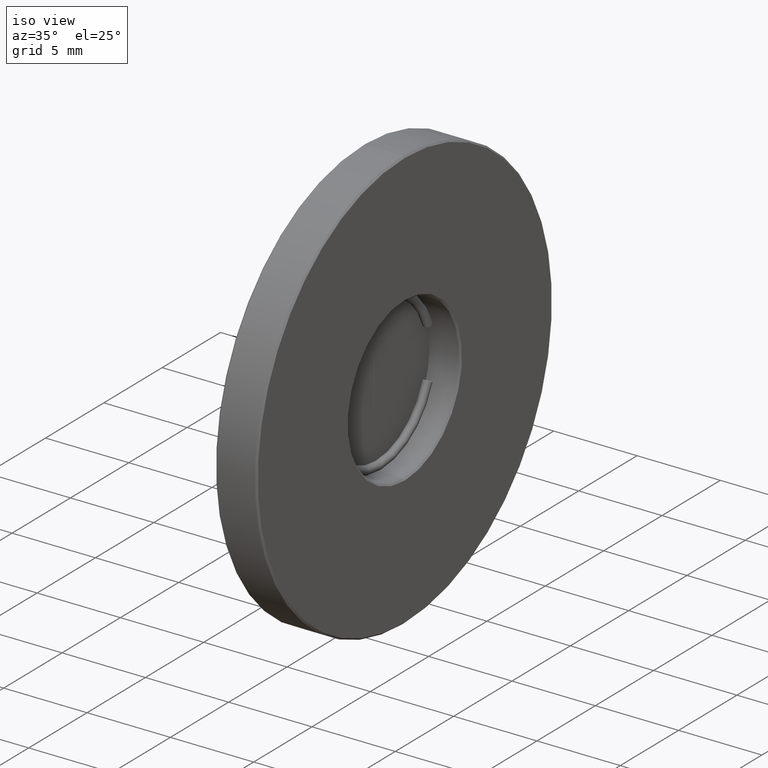
[diagram: clean part render]
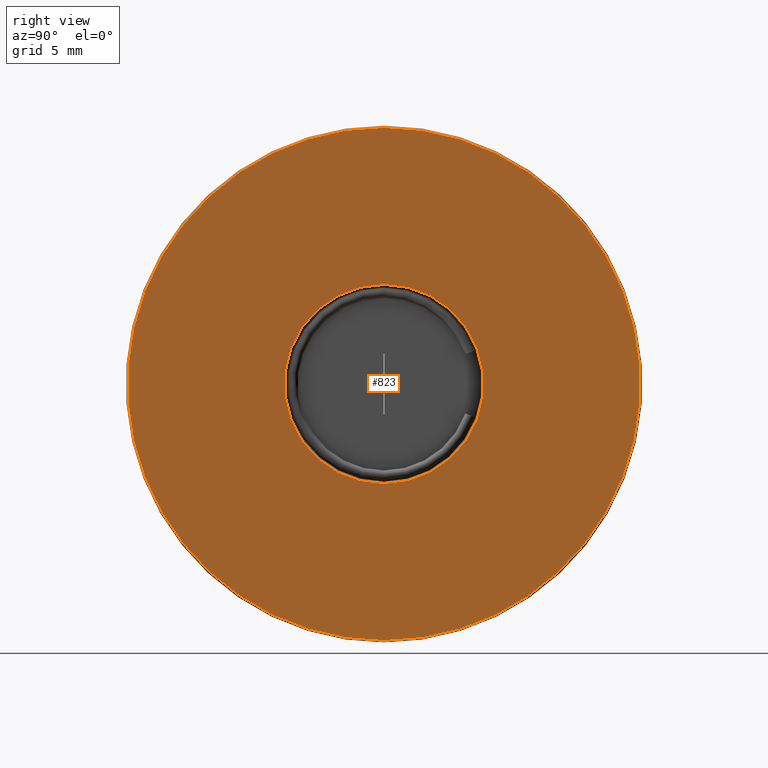
[diagram: tour spotlight — one face highlighted and labeled with its STEP entity id]
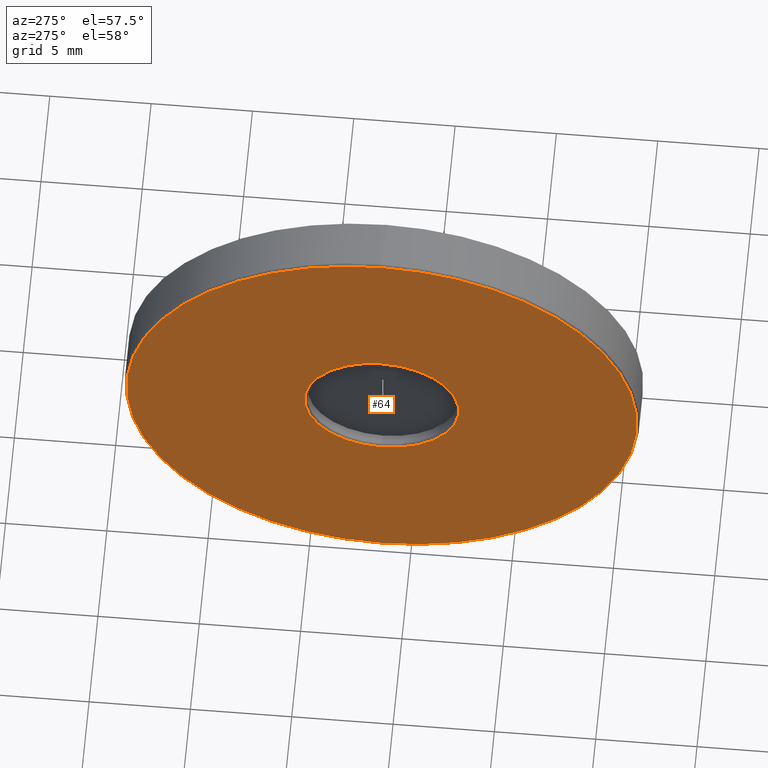
[diagram: tour spotlight — one face highlighted and labeled with its STEP entity id]
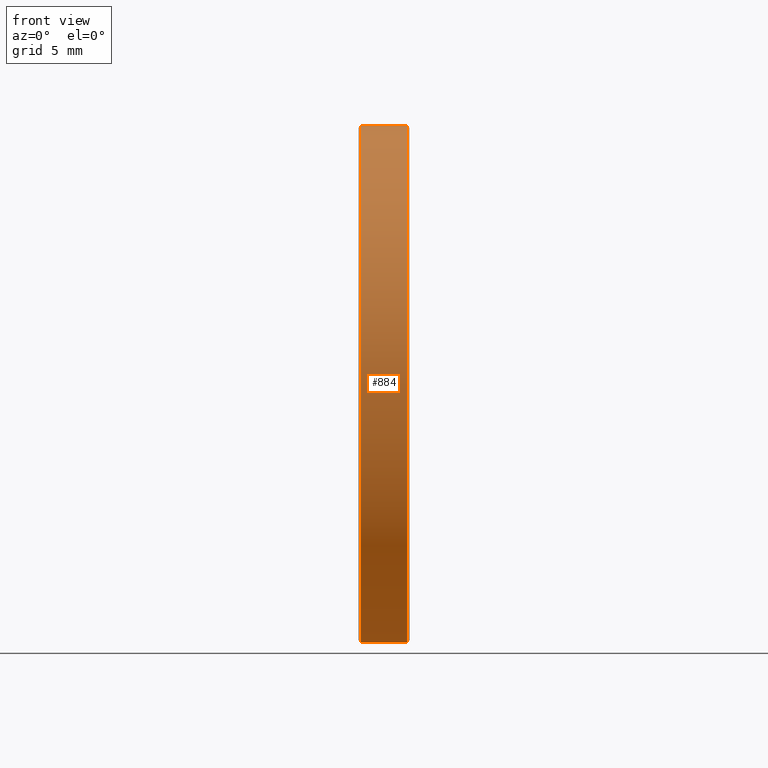
[diagram: tour spotlight — one face highlighted and labeled with its STEP entity id]
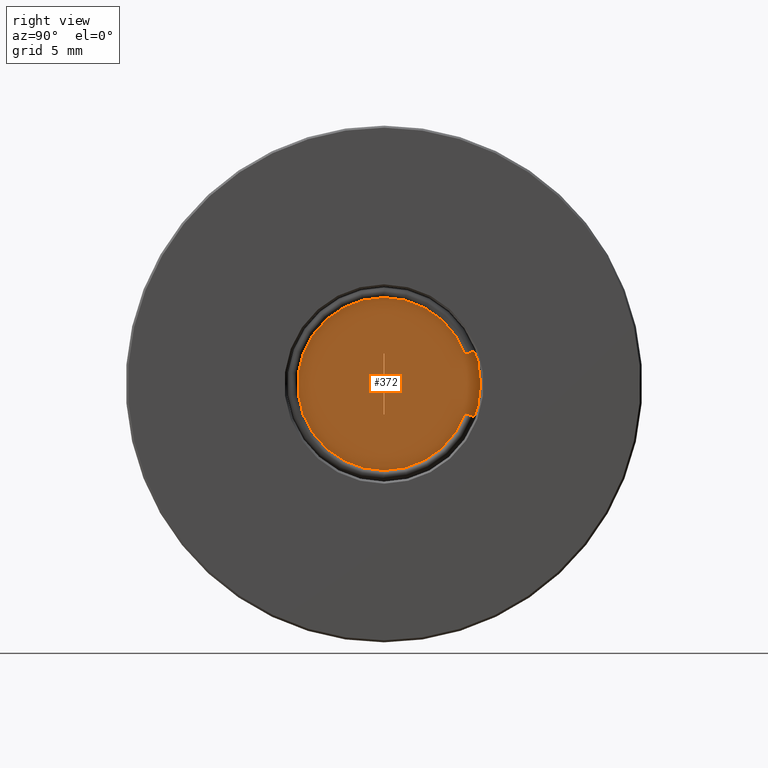
[diagram: tour spotlight — one face highlighted and labeled with its STEP entity id]
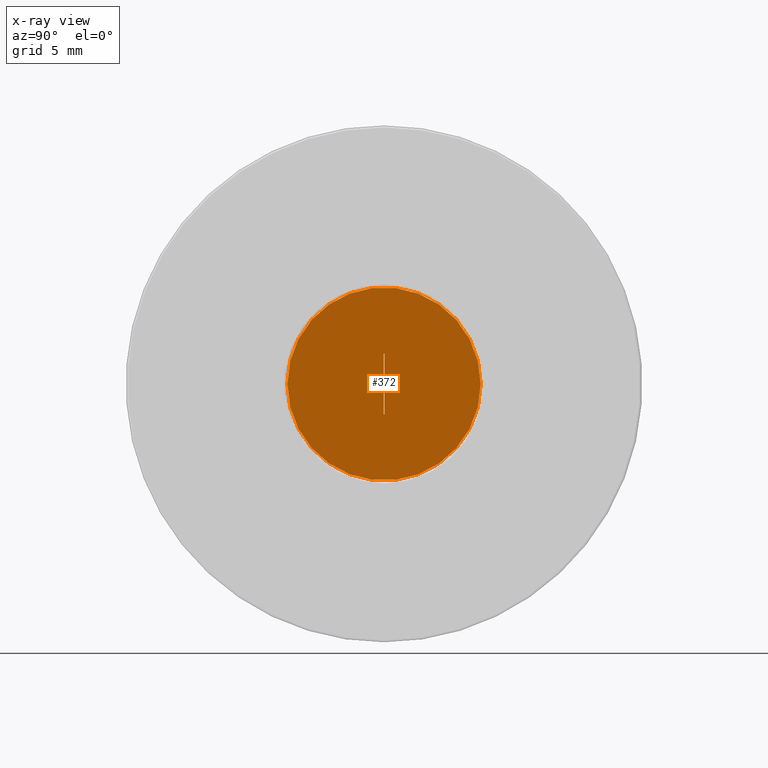
[diagram: x-ray of the same camera — body ghosted, this tour face saturated]
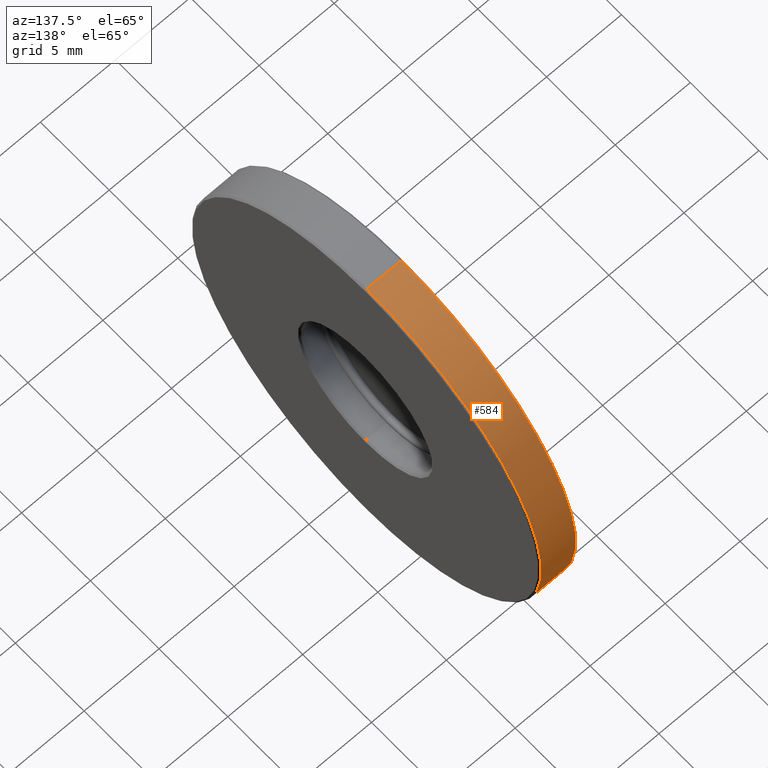
[diagram: tour spotlight — one face highlighted and labeled with its STEP entity id]
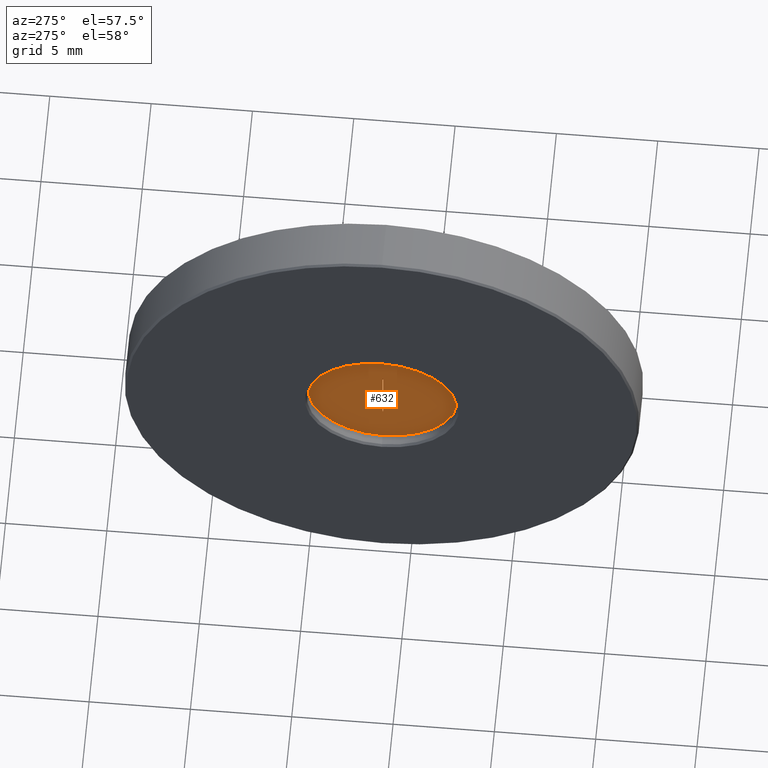
[diagram: tour spotlight — one face highlighted and labeled with its STEP entity id]
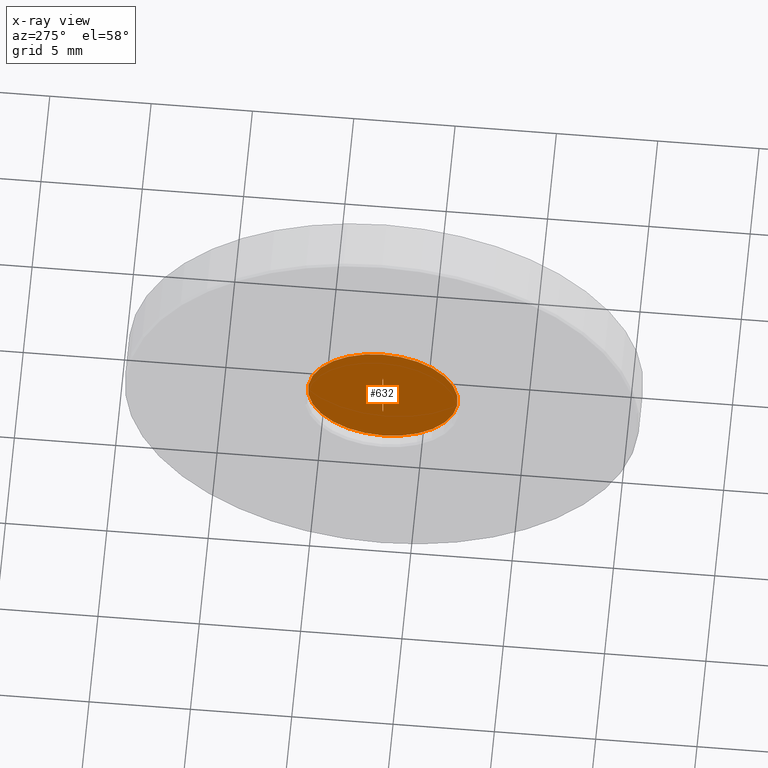
[diagram: x-ray of the same camera — body ghosted, this tour face saturated]
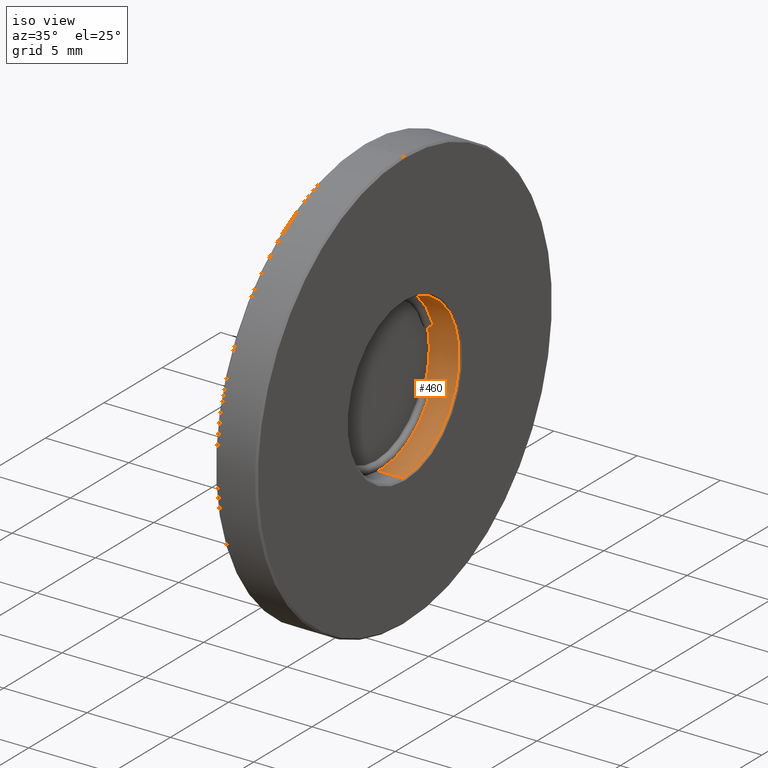
[diagram: tour spotlight — one face highlighted and labeled with its STEP entity id]
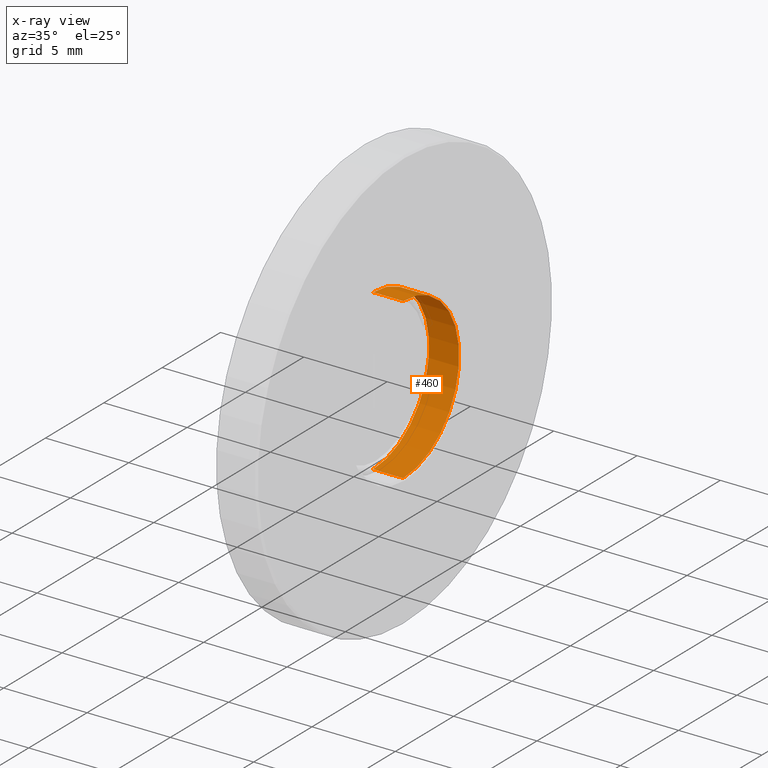
[diagram: x-ray of the same camera — body ghosted, this tour face saturated]
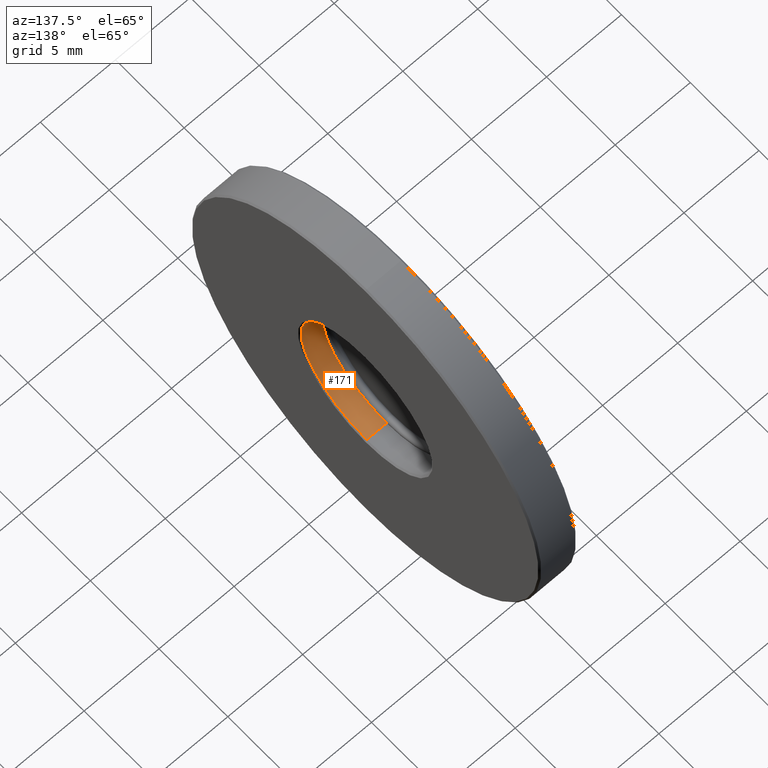
[diagram: tour spotlight — one face highlighted and labeled with its STEP entity id]
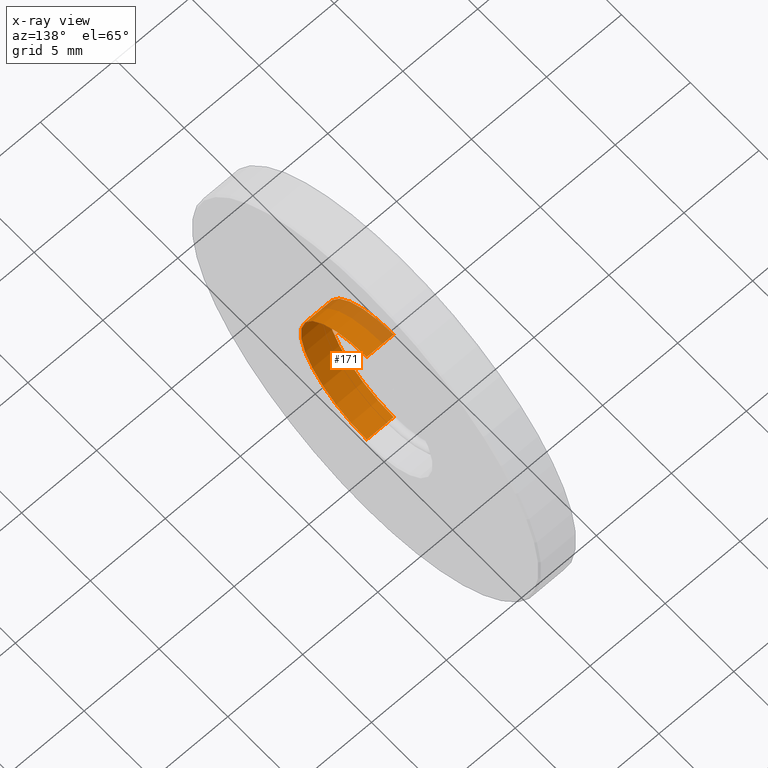
[diagram: x-ray of the same camera — body ghosted, this tour face saturated]
A machine part: a face-by-face anatomy tour. The part has 33 B-rep faces; the first image is the clean iso view, then the 8 largest visible faces are spotlighted one at a time (largest first), each with its STEP entity span.

Face 1 — right view, entity #823. In plain terms, the highlighted planar face has unit normal (1, 0, 0).
Definition (entity closure, byte-faithful):
#23 = CARTESIAN_POINT ( 'NONE',  ( -2.434863851252999645, 1.436758841085000071, 25.39999999999999858 ) ) ;
#24 = ORIENTED_EDGE ( 'NONE', *, *, #152, .T. ) ;
#43 = CARTESIAN_POINT ( 'NONE',  ( -2.434863851252999645, 1.436758841085000737, 30.30000000000000071 ) ) ;
#44 = ORIENTED_EDGE ( 'NONE', *, *, #729, .T. ) ;
#55 = EDGE_LOOP ( 'NONE', ( #44, #793 ) ) ;
#72 = PLANE ( 'NONE',  #134 ) ;
#74 = EDGE_CURVE ( 'NONE', #714, #585, #489, .T. ) ;
#78 = FACE_OUTER_BOUND ( 'NONE', #563, .T. ) ;
#95 = DIRECTION ( 'NONE',  ( 1.000000000000000000, 0.000000000000000000, 0.000000000000000000 ) ) ;
#112 = ORIENTED_EDGE ( 'NONE', *, *, #74, .T. ) ;
#124 = DIRECTION ( 'NONE',  ( -1.000000000000000000, 0.000000000000000000, 0.000000000000000000 ) ) ;
#134 = AXIS2_PLACEMENT_3D ( 'NONE', #446, #595, #307 ) ;
#152 = EDGE_CURVE ( 'NONE', #585, #714, #425, .T. ) ;
#182 = VERTEX_POINT ( 'NONE', #774 ) ;
#192 = AXIS2_PLACEMENT_3D ( 'NONE', #874, #95, #807 ) ;
#197 = CARTESIAN_POINT ( 'NONE',  ( -2.434863851252999645, 1.436758841085000071, 38.00000000000000000 ) ) ;
#280 = DIRECTION ( 'NONE',  ( 0.000000000000000000, 0.000000000000000000, -1.000000000000000000 ) ) ;
#298 = DIRECTION ( 'NONE',  ( 0.000000000000000000, 0.000000000000000000, -1.000000000000000000 ) ) ;
#307 = DIRECTION ( 'NONE',  ( 0.000000000000000000, 1.000000000000000000, 0.000000000000000000 ) ) ;
#314 = EDGE_CURVE ( 'NONE', #477, #182, #623, .T. ) ;
#419 = DIRECTION ( 'NONE',  ( 0.000000000000000000, 0.000000000000000000, -1.000000000000000000 ) ) ;
#425 = CIRCLE ( 'NONE', #192, 12.59999999999999964 ) ;
#431 = CARTESIAN_POINT ( 'NONE',  ( -2.434863851252999645, 1.436758841085000071, 25.39999999999999858 ) ) ;
#442 = AXIS2_PLACEMENT_3D ( 'NONE', #431, #768, #419 ) ;
#446 = CARTESIAN_POINT ( 'NONE',  ( -2.434863851252999645, 1.436758841085000071, 25.39999999999999858 ) ) ;
#458 = CIRCLE ( 'NONE', #624, 4.900000000000001243 ) ;
#470 = CARTESIAN_POINT ( 'NONE',  ( -2.434863851252999645, 1.436758841085001626, 12.79999999999999893 ) ) ;
#477 = VERTEX_POINT ( 'NONE', #43 ) ;
#489 = CIRCLE ( 'NONE', #569, 12.59999999999999964 ) ;
#513 = FACE_BOUND ( 'NONE', #55, .T. ) ;
#563 = EDGE_LOOP ( 'NONE', ( #112, #24 ) ) ;
#569 = AXIS2_PLACEMENT_3D ( 'NONE', #23, #881, #298 ) ;
#585 = VERTEX_POINT ( 'NONE', #470 ) ;
#595 = DIRECTION ( 'NONE',  ( 1.000000000000000000, 0.000000000000000000, 0.000000000000000000 ) ) ;
#623 = CIRCLE ( 'NONE', #442, 4.900000000000001243 ) ;
#624 = AXIS2_PLACEMENT_3D ( 'NONE', #843, #124, #280 ) ;
#714 = VERTEX_POINT ( 'NONE', #197 ) ;
#729 = EDGE_CURVE ( 'NONE', #182, #477, #458, .T. ) ;
#768 = DIRECTION ( 'NONE',  ( -1.000000000000000000, 0.000000000000000000, 0.000000000000000000 ) ) ;
#774 = CARTESIAN_POINT ( 'NONE',  ( -2.434863851252999645, 1.436758841085000071, 20.49999999999999645 ) ) ;
#793 = ORIENTED_EDGE ( 'NONE', *, *, #314, .T. ) ;
#807 = DIRECTION ( 'NONE',  ( 0.000000000000000000, 0.000000000000000000, -1.000000000000000000 ) ) ;
#823 = ADVANCED_FACE ( 'NONE', ( #513, #78 ), #72, .T. ) ;
#843 = CARTESIAN_POINT ( 'NONE',  ( -2.434863851252999645, 1.436758841085000071, 25.39999999999999858 ) ) ;
#874 = CARTESIAN_POINT ( 'NONE',  ( -2.434863851252999645, 1.436758841085000071, 25.39999999999999858 ) ) ;
#881 = DIRECTION ( 'NONE',  ( 1.000000000000000000, 0.000000000000000000, 0.000000000000000000 ) ) ;

Face 2 — auxiliary view, entity #64. In plain terms, the highlighted planar face has unit normal (1, 0, 0).
Definition (entity closure, byte-faithful):
#35 = AXIS2_PLACEMENT_3D ( 'NONE', #533, #600, #734 ) ;
#49 = AXIS2_PLACEMENT_3D ( 'NONE', #175, #98, #455 ) ;
#64 = ADVANCED_FACE ( 'NONE', ( #463, #885 ), #815, .F. ) ;
#98 = DIRECTION ( 'NONE',  ( -1.000000000000000000, 0.000000000000000000, 0.000000000000000000 ) ) ;
#147 = VERTEX_POINT ( 'NONE', #593 ) ;
#159 = ORIENTED_EDGE ( 'NONE', *, *, #688, .T. ) ;
#165 = CIRCLE ( 'NONE', #819, 3.800000000000001155 ) ;
#175 = CARTESIAN_POINT ( 'NONE',  ( -4.934863851252999645, 1.436758841085000071, 25.39999999999999858 ) ) ;
#189 = ORIENTED_EDGE ( 'NONE', *, *, #466, .T. ) ;
#231 = DIRECTION ( 'NONE',  ( 0.000000000000000000, 0.000000000000000000, -1.000000000000000000 ) ) ;
#270 = DIRECTION ( 'NONE',  ( 0.000000000000000000, 0.000000000000000000, -1.000000000000000000 ) ) ;
#380 = CIRCLE ( 'NONE', #49, 12.59999999999999964 ) ;
#429 = EDGE_LOOP ( 'NONE', ( #495, #159 ) ) ;
#450 = CARTESIAN_POINT ( 'NONE',  ( -4.934863851252999645, 1.436758841085001626, 38.00000000000000000 ) ) ;
#455 = DIRECTION ( 'NONE',  ( 0.000000000000000000, 0.000000000000000000, -1.000000000000000000 ) ) ;
#463 = FACE_OUTER_BOUND ( 'NONE', #429, .T. ) ;
#466 = EDGE_CURVE ( 'NONE', #763, #147, #165, .T. ) ;
#471 = EDGE_CURVE ( 'NONE', #588, #830, #380, .T. ) ;
#475 = CIRCLE ( 'NONE', #743, 3.800000000000001155 ) ;
#483 = CARTESIAN_POINT ( 'NONE',  ( -4.934863851252999645, 1.436758841085000071, 25.39999999999999858 ) ) ;
#495 = ORIENTED_EDGE ( 'NONE', *, *, #471, .T. ) ;
#501 = EDGE_LOOP ( 'NONE', ( #189, #838 ) ) ;
#533 = CARTESIAN_POINT ( 'NONE',  ( -4.934863851252999645, 1.436758841085000071, 25.39999999999999858 ) ) ;
#565 = EDGE_CURVE ( 'NONE', #147, #763, #475, .T. ) ;
#587 = DIRECTION ( 'NONE',  ( 1.000000000000000000, 0.000000000000000000, 0.000000000000000000 ) ) ;
#588 = VERTEX_POINT ( 'NONE', #755 ) ;
#593 = CARTESIAN_POINT ( 'NONE',  ( -4.934863851252999645, 1.436758841085000515, 21.59999999999999787 ) ) ;
#600 = DIRECTION ( 'NONE',  ( 1.000000000000000000, 0.000000000000000000, 0.000000000000000000 ) ) ;
#608 = CARTESIAN_POINT ( 'NONE',  ( -4.934863851252999645, 1.436758841085000071, 25.39999999999999858 ) ) ;
#652 = CARTESIAN_POINT ( 'NONE',  ( -4.934863851252999645, 1.436758841085000071, 29.19999999999999929 ) ) ;
#654 = CIRCLE ( 'NONE', #726, 12.59999999999999964 ) ;
#688 = EDGE_CURVE ( 'NONE', #830, #588, #654, .T. ) ;
#726 = AXIS2_PLACEMENT_3D ( 'NONE', #483, #767, #270 ) ;
#734 = DIRECTION ( 'NONE',  ( 0.000000000000000000, 1.000000000000000000, 0.000000000000000000 ) ) ;
#743 = AXIS2_PLACEMENT_3D ( 'NONE', #608, #747, #893 ) ;
#747 = DIRECTION ( 'NONE',  ( 1.000000000000000000, 0.000000000000000000, 0.000000000000000000 ) ) ;
#755 = CARTESIAN_POINT ( 'NONE',  ( -4.934863851252999645, 1.436758841085000071, 12.79999999999999893 ) ) ;
#763 = VERTEX_POINT ( 'NONE', #652 ) ;
#767 = DIRECTION ( 'NONE',  ( -1.000000000000000000, 0.000000000000000000, 0.000000000000000000 ) ) ;
#815 = PLANE ( 'NONE',  #35 ) ;
#819 = AXIS2_PLACEMENT_3D ( 'NONE', #883, #587, #231 ) ;
#830 = VERTEX_POINT ( 'NONE', #450 ) ;
#838 = ORIENTED_EDGE ( 'NONE', *, *, #565, .T. ) ;
#883 = CARTESIAN_POINT ( 'NONE',  ( -4.934863851252999645, 1.436758841085000071, 25.39999999999999858 ) ) ;
#885 = FACE_BOUND ( 'NONE', #501, .T. ) ;
#893 = DIRECTION ( 'NONE',  ( 0.000000000000000000, 0.000000000000000000, -1.000000000000000000 ) ) ;

Face 3 — front view, entity #884. In plain terms, the highlighted cylindrical surface (partial cylindrical patch) has radius 12.7 mm, axis along (-1, 0, 0).
Definition (entity closure, byte-faithful):
#3 = ORIENTED_EDGE ( 'NONE', *, *, #604, .T. ) ;
#29 = EDGE_LOOP ( 'NONE', ( #575, #174, #3, #529 ) ) ;
#38 = VERTEX_POINT ( 'NONE', #520 ) ;
#87 = FACE_OUTER_BOUND ( 'NONE', #29, .T. ) ;
#155 = CARTESIAN_POINT ( 'NONE',  ( -2.534863851253000178, 1.436758841085000071, 25.39999999999999858 ) ) ;
#174 = ORIENTED_EDGE ( 'NONE', *, *, #854, .T. ) ;
#188 = DIRECTION ( 'NONE',  ( 1.000000000000000000, 0.000000000000000000, 0.000000000000000000 ) ) ;
#191 = LINE ( 'NONE', #699, #640 ) ;
#204 = DIRECTION ( 'NONE',  ( -1.000000000000000000, 0.000000000000000000, 0.000000000000000000 ) ) ;
#211 = DIRECTION ( 'NONE',  ( 0.000000000000000000, 0.000000000000000000, -1.000000000000000000 ) ) ;
#251 = VERTEX_POINT ( 'NONE', #924 ) ;
#256 = EDGE_CURVE ( 'NONE', #251, #856, #669, .T. ) ;
#266 = DIRECTION ( 'NONE',  ( 0.000000000000000000, 0.000000000000000000, -1.000000000000000000 ) ) ;
#363 = CARTESIAN_POINT ( 'NONE',  ( -4.834863851252999112, 1.436758841085001626, 12.69999999999999929 ) ) ;
#381 = VECTOR ( 'NONE', #888, 1000.000000000000000 ) ;
#438 = VERTEX_POINT ( 'NONE', #655 ) ;
#507 = AXIS2_PLACEMENT_3D ( 'NONE', #857, #204, #902 ) ;
#520 = CARTESIAN_POINT ( 'NONE',  ( -2.534863851253000178, 1.436758841085000071, 38.09999999999999432 ) ) ;
#529 = ORIENTED_EDGE ( 'NONE', *, *, #256, .T. ) ;
#532 = AXIS2_PLACEMENT_3D ( 'NONE', #840, #188, #266 ) ;
#550 = LINE ( 'NONE', #741, #381 ) ;
#575 = ORIENTED_EDGE ( 'NONE', *, *, #757, .F. ) ;
#583 = AXIS2_PLACEMENT_3D ( 'NONE', #155, #720, #211 ) ;
#604 = EDGE_CURVE ( 'NONE', #38, #251, #550, .T. ) ;
#630 = DIRECTION ( 'NONE',  ( -1.000000000000000000, 0.000000000000000000, 0.000000000000000000 ) ) ;
#640 = VECTOR ( 'NONE', #630, 1000.000000000000000 ) ;
#655 = CARTESIAN_POINT ( 'NONE',  ( -2.534863851253000178, 1.436758841085001626, 12.69999999999999929 ) ) ;
#667 = CYLINDRICAL_SURFACE ( 'NONE', #507, 12.69999999999999574 ) ;
#669 = CIRCLE ( 'NONE', #532, 12.69999999999999929 ) ;
#699 = CARTESIAN_POINT ( 'NONE',  ( -2.434863851252999645, 1.436758841085001626, 12.69999999999999929 ) ) ;
#720 = DIRECTION ( 'NONE',  ( -1.000000000000000000, 0.000000000000000000, 0.000000000000000000 ) ) ;
#741 = CARTESIAN_POINT ( 'NONE',  ( -2.434863851252999645, 1.436758841085000071, 38.09999999999999432 ) ) ;
#757 = EDGE_CURVE ( 'NONE', #438, #856, #191, .T. ) ;
#833 = CIRCLE ( 'NONE', #583, 12.69999999999999929 ) ;
#840 = CARTESIAN_POINT ( 'NONE',  ( -4.834863851252999112, 1.436758841085000071, 25.39999999999999858 ) ) ;
#854 = EDGE_CURVE ( 'NONE', #438, #38, #833, .T. ) ;
#856 = VERTEX_POINT ( 'NONE', #363 ) ;
#857 = CARTESIAN_POINT ( 'NONE',  ( -2.434863851252999645, 1.436758841085000071, 25.39999999999999858 ) ) ;
#884 = ADVANCED_FACE ( 'NONE', ( #87 ), #667, .T. ) ;
#888 = DIRECTION ( 'NONE',  ( -1.000000000000000000, 0.000000000000000000, 0.000000000000000000 ) ) ;
#902 = DIRECTION ( 'NONE',  ( 0.000000000000000000, 0.000000000000000000, 1.000000000000000000 ) ) ;
#924 = CARTESIAN_POINT ( 'NONE',  ( -4.834863851252999112, 1.436758841085000071, 38.09999999999999432 ) ) ;

Face 4 — right view, entity #372. An x-ray twin of the same camera follows (body ghosted, this face saturated) — the face is partly hidden behind the body. In plain terms, the highlighted planar face has unit normal (1, 0, 0).
Definition (entity closure, byte-faithful):
#14 = EDGE_CURVE ( 'NONE', #619, #373, #75, .T. ) ;
#25 = DIRECTION ( 'NONE',  ( 0.000000000000000000, -1.000000000000000000, 0.000000000000000000 ) ) ;
#30 = DIRECTION ( 'NONE',  ( 1.000000000000000000, 0.000000000000000000, 0.000000000000000000 ) ) ;
#75 = LINE ( 'NONE', #571, #242 ) ;
#84 = LINE ( 'NONE', #102, #135 ) ;
#92 = EDGE_CURVE ( 'NONE', #633, #619, #84, .T. ) ;
#100 = DIRECTION ( 'NONE',  ( 0.000000000000000000, 0.000000000000000000, -1.000000000000000000 ) ) ;
#102 = CARTESIAN_POINT ( 'NONE',  ( -4.284863851253000178, 1.421758841084999947, 26.89999999999999858 ) ) ;
#106 = AXIS2_PLACEMENT_3D ( 'NONE', #469, #30, #25 ) ;
#126 = VERTEX_POINT ( 'NONE', #232 ) ;
#135 = VECTOR ( 'NONE', #100, 1000.000000000000000 ) ;
#145 = CARTESIAN_POINT ( 'NONE',  ( -4.284863851253000178, 1.451758841084999974, 26.89999999999999858 ) ) ;
#161 = PLANE ( 'NONE',  #877 ) ;
#221 = DIRECTION ( 'NONE',  ( 0.000000000000000000, -1.000000000000000000, 0.000000000000000000 ) ) ;
#223 = VECTOR ( 'NONE', #221, 1000.000000000000000 ) ;
#226 = FACE_BOUND ( 'NONE', #352, .T. ) ;
#232 = CARTESIAN_POINT ( 'NONE',  ( -4.284863851253000178, 1.451758841084999974, 26.89999999999999858 ) ) ;
#235 = CARTESIAN_POINT ( 'NONE',  ( -4.284863851253000178, 1.421758841084999947, 23.89999999999999858 ) ) ;
#238 = CIRCLE ( 'NONE', #769, 4.750000000000000000 ) ;
#242 = VECTOR ( 'NONE', #664, 1000.000000000000000 ) ;
#297 = DIRECTION ( 'NONE',  ( 1.000000000000000000, 0.000000000000000000, 0.000000000000000000 ) ) ;
#311 = VERTEX_POINT ( 'NONE', #858 ) ;
#352 = EDGE_LOOP ( 'NONE', ( #552, #675, #432, #855 ) ) ;
#364 = CARTESIAN_POINT ( 'NONE',  ( -4.284863851253000178, 1.451758841084999974, 23.89999999999999858 ) ) ;
#372 = ADVANCED_FACE ( 'NONE', ( #226, #804 ), #161, .T. ) ;
#373 = VERTEX_POINT ( 'NONE', #364 ) ;
#420 = EDGE_CURVE ( 'NONE', #126, #633, #873, .T. ) ;
#432 = ORIENTED_EDGE ( 'NONE', *, *, #92, .F. ) ;
#453 = EDGE_CURVE ( 'NONE', #311, #851, #238, .T. ) ;
#469 = CARTESIAN_POINT ( 'NONE',  ( -4.284863851253000178, 1.436758841085000071, 25.39999999999999858 ) ) ;
#502 = CARTESIAN_POINT ( 'NONE',  ( -4.284863851253000178, -3.313241158914999929, 25.39999999999999858 ) ) ;
#504 = VECTOR ( 'NONE', #919, 1000.000000000000000 ) ;
#514 = CARTESIAN_POINT ( 'NONE',  ( -4.284863851253000178, 1.436758841085000071, 25.39999999999999858 ) ) ;
#522 = DIRECTION ( 'NONE',  ( 0.000000000000000000, -1.000000000000000000, 0.000000000000000000 ) ) ;
#552 = ORIENTED_EDGE ( 'NONE', *, *, #650, .F. ) ;
#571 = CARTESIAN_POINT ( 'NONE',  ( -4.284863851253000178, 1.451758841084999974, 23.89999999999999858 ) ) ;
#619 = VERTEX_POINT ( 'NONE', #235 ) ;
#633 = VERTEX_POINT ( 'NONE', #772 ) ;
#634 = CARTESIAN_POINT ( 'NONE',  ( -4.284863851253000178, 1.451758841084999974, 26.89999999999999858 ) ) ;
#650 = EDGE_CURVE ( 'NONE', #373, #126, #923, .T. ) ;
#664 = DIRECTION ( 'NONE',  ( 0.000000000000000000, 1.000000000000000000, 0.000000000000000000 ) ) ;
#675 = ORIENTED_EDGE ( 'NONE', *, *, #14, .F. ) ;
#727 = DIRECTION ( 'NONE',  ( 1.000000000000000000, 0.000000000000000000, 0.000000000000000000 ) ) ;
#735 = EDGE_LOOP ( 'NONE', ( #927, #775 ) ) ;
#769 = AXIS2_PLACEMENT_3D ( 'NONE', #879, #727, #522 ) ;
#772 = CARTESIAN_POINT ( 'NONE',  ( -4.284863851253000178, 1.421758841084999947, 26.89999999999999858 ) ) ;
#775 = ORIENTED_EDGE ( 'NONE', *, *, #899, .T. ) ;
#788 = CIRCLE ( 'NONE', #106, 4.750000000000000000 ) ;
#804 = FACE_OUTER_BOUND ( 'NONE', #735, .T. ) ;
#851 = VERTEX_POINT ( 'NONE', #502 ) ;
#855 = ORIENTED_EDGE ( 'NONE', *, *, #420, .F. ) ;
#858 = CARTESIAN_POINT ( 'NONE',  ( -4.284863851253000178, 6.186758841085000071, 25.39999999999999858 ) ) ;
#868 = DIRECTION ( 'NONE',  ( 0.000000000000000000, 0.000000000000000000, -1.000000000000000000 ) ) ;
#873 = LINE ( 'NONE', #145, #223 ) ;
#877 = AXIS2_PLACEMENT_3D ( 'NONE', #514, #297, #868 ) ;
#879 = CARTESIAN_POINT ( 'NONE',  ( -4.284863851253000178, 1.436758841085000071, 25.39999999999999858 ) ) ;
#899 = EDGE_CURVE ( 'NONE', #851, #311, #788, .T. ) ;
#919 = DIRECTION ( 'NONE',  ( 0.000000000000000000, 0.000000000000000000, 1.000000000000000000 ) ) ;
#923 = LINE ( 'NONE', #634, #504 ) ;
#927 = ORIENTED_EDGE ( 'NONE', *, *, #453, .T. ) ;

Face 5 — auxiliary view, entity #584. In plain terms, the highlighted cylindrical surface (partial cylindrical patch) has radius 12.7 mm, axis along (-1, 0, 0).
Definition (entity closure, byte-faithful):
#38 = VERTEX_POINT ( 'NONE', #520 ) ;
#40 = DIRECTION ( 'NONE',  ( 0.000000000000000000, 0.000000000000000000, -1.000000000000000000 ) ) ;
#63 = ORIENTED_EDGE ( 'NONE', *, *, #757, .T. ) ;
#108 = FACE_OUTER_BOUND ( 'NONE', #258, .T. ) ;
#115 = DIRECTION ( 'NONE',  ( 1.000000000000000000, 0.000000000000000000, 0.000000000000000000 ) ) ;
#132 = AXIS2_PLACEMENT_3D ( 'NONE', #540, #689, #828 ) ;
#154 = ORIENTED_EDGE ( 'NONE', *, *, #733, .T. ) ;
#191 = LINE ( 'NONE', #699, #640 ) ;
#202 = ORIENTED_EDGE ( 'NONE', *, *, #604, .F. ) ;
#207 = CIRCLE ( 'NONE', #289, 12.69999999999999929 ) ;
#251 = VERTEX_POINT ( 'NONE', #924 ) ;
#258 = EDGE_LOOP ( 'NONE', ( #590, #63, #154, #202 ) ) ;
#289 = AXIS2_PLACEMENT_3D ( 'NONE', #706, #115, #577 ) ;
#363 = CARTESIAN_POINT ( 'NONE',  ( -4.834863851252999112, 1.436758841085001626, 12.69999999999999929 ) ) ;
#381 = VECTOR ( 'NONE', #888, 1000.000000000000000 ) ;
#388 = CARTESIAN_POINT ( 'NONE',  ( -2.534863851253000178, 1.436758841085000071, 25.39999999999999858 ) ) ;
#403 = CYLINDRICAL_SURFACE ( 'NONE', #132, 12.69999999999999574 ) ;
#438 = VERTEX_POINT ( 'NONE', #655 ) ;
#494 = EDGE_CURVE ( 'NONE', #38, #438, #670, .T. ) ;
#520 = CARTESIAN_POINT ( 'NONE',  ( -2.534863851253000178, 1.436758841085000071, 38.09999999999999432 ) ) ;
#531 = DIRECTION ( 'NONE',  ( -1.000000000000000000, 0.000000000000000000, 0.000000000000000000 ) ) ;
#540 = CARTESIAN_POINT ( 'NONE',  ( -2.434863851252999645, 1.436758841085000071, 25.39999999999999858 ) ) ;
#550 = LINE ( 'NONE', #741, #381 ) ;
#577 = DIRECTION ( 'NONE',  ( 0.000000000000000000, 0.000000000000000000, -1.000000000000000000 ) ) ;
#581 = AXIS2_PLACEMENT_3D ( 'NONE', #388, #531, #40 ) ;
#584 = ADVANCED_FACE ( 'NONE', ( #108 ), #403, .T. ) ;
#590 = ORIENTED_EDGE ( 'NONE', *, *, #494, .T. ) ;
#604 = EDGE_CURVE ( 'NONE', #38, #251, #550, .T. ) ;
#630 = DIRECTION ( 'NONE',  ( -1.000000000000000000, 0.000000000000000000, 0.000000000000000000 ) ) ;
#640 = VECTOR ( 'NONE', #630, 1000.000000000000000 ) ;
#655 = CARTESIAN_POINT ( 'NONE',  ( -2.534863851253000178, 1.436758841085001626, 12.69999999999999929 ) ) ;
#670 = CIRCLE ( 'NONE', #581, 12.69999999999999929 ) ;
#689 = DIRECTION ( 'NONE',  ( -1.000000000000000000, 0.000000000000000000, 0.000000000000000000 ) ) ;
#699 = CARTESIAN_POINT ( 'NONE',  ( -2.434863851252999645, 1.436758841085001626, 12.69999999999999929 ) ) ;
#706 = CARTESIAN_POINT ( 'NONE',  ( -4.834863851252999112, 1.436758841085000071, 25.39999999999999858 ) ) ;
#733 = EDGE_CURVE ( 'NONE', #856, #251, #207, .T. ) ;
#741 = CARTESIAN_POINT ( 'NONE',  ( -2.434863851252999645, 1.436758841085000071, 38.09999999999999432 ) ) ;
#757 = EDGE_CURVE ( 'NONE', #438, #856, #191, .T. ) ;
#828 = DIRECTION ( 'NONE',  ( 0.000000000000000000, 0.000000000000000000, 1.000000000000000000 ) ) ;
#856 = VERTEX_POINT ( 'NONE', #363 ) ;
#888 = DIRECTION ( 'NONE',  ( -1.000000000000000000, 0.000000000000000000, 0.000000000000000000 ) ) ;
#924 = CARTESIAN_POINT ( 'NONE',  ( -4.834863851252999112, 1.436758841085000071, 38.09999999999999432 ) ) ;

Face 6 — auxiliary view, entity #632. An x-ray twin of the same camera follows (body ghosted, this face saturated) — the face is partly hidden behind the body. In plain terms, the highlighted planar face has unit normal (1, 0, 0).
Definition (entity closure, byte-faithful):
#52 = FACE_OUTER_BOUND ( 'NONE', #473, .T. ) ;
#57 = DIRECTION ( 'NONE',  ( -1.000000000000000000, 0.000000000000000000, 0.000000000000000000 ) ) ;
#60 = DIRECTION ( 'NONE',  ( 0.000000000000000000, 0.000000000000000000, -1.000000000000000000 ) ) ;
#68 = ORIENTED_EDGE ( 'NONE', *, *, #935, .T. ) ;
#73 = CARTESIAN_POINT ( 'NONE',  ( -4.334863851253000000, 1.421758841084999947, 23.89999999999999858 ) ) ;
#125 = DIRECTION ( 'NONE',  ( 0.000000000000000000, 0.000000000000000000, -1.000000000000000000 ) ) ;
#128 = DIRECTION ( 'NONE',  ( -1.000000000000000000, 0.000000000000000000, 0.000000000000000000 ) ) ;
#169 = ORIENTED_EDGE ( 'NONE', *, *, #441, .T. ) ;
#187 = CARTESIAN_POINT ( 'NONE',  ( -4.334863851253000000, 1.436758841085000071, 25.39999999999999858 ) ) ;
#195 = VECTOR ( 'NONE', #887, 1000.000000000000000 ) ;
#205 = CARTESIAN_POINT ( 'NONE',  ( -4.334863851253000000, 1.451758841084999974, 23.89999999999999858 ) ) ;
#260 = FACE_BOUND ( 'NONE', #396, .T. ) ;
#262 = EDGE_CURVE ( 'NONE', #660, #801, #320, .T. ) ;
#265 = CARTESIAN_POINT ( 'NONE',  ( -4.334863851253000000, 1.421758841084999947, 26.89999999999999858 ) ) ;
#272 = CARTESIAN_POINT ( 'NONE',  ( -4.334863851253000000, 1.451758841084999974, 23.89999999999999858 ) ) ;
#275 = VERTEX_POINT ( 'NONE', #205 ) ;
#276 = DIRECTION ( 'NONE',  ( 1.000000000000000000, 0.000000000000000000, 0.000000000000000000 ) ) ;
#277 = CARTESIAN_POINT ( 'NONE',  ( -4.334863851253000000, 1.451758841084999974, 26.89999999999999858 ) ) ;
#295 = EDGE_CURVE ( 'NONE', #406, #275, #700, .T. ) ;
#302 = DIRECTION ( 'NONE',  ( 0.000000000000000000, 0.000000000000000000, -1.000000000000000000 ) ) ;
#320 = CIRCLE ( 'NONE', #845, 3.700000000000001954 ) ;
#326 = DIRECTION ( 'NONE',  ( 0.000000000000000000, 0.000000000000000000, 1.000000000000000000 ) ) ;
#333 = EDGE_CURVE ( 'NONE', #275, #886, #505, .T. ) ;
#347 = ORIENTED_EDGE ( 'NONE', *, *, #676, .T. ) ;
#360 = LINE ( 'NONE', #649, #456 ) ;
#396 = EDGE_LOOP ( 'NONE', ( #579, #629, #68, #169 ) ) ;
#406 = VERTEX_POINT ( 'NONE', #73 ) ;
#413 = PLANE ( 'NONE',  #785 ) ;
#441 = EDGE_CURVE ( 'NONE', #708, #406, #360, .T. ) ;
#456 = VECTOR ( 'NONE', #302, 1000.000000000000000 ) ;
#473 = EDGE_LOOP ( 'NONE', ( #347, #648 ) ) ;
#484 = DIRECTION ( 'NONE',  ( 0.000000000000000000, 1.000000000000000000, 0.000000000000000000 ) ) ;
#505 = LINE ( 'NONE', #277, #598 ) ;
#566 = CARTESIAN_POINT ( 'NONE',  ( -4.334863851253000000, 1.436758841085000071, 25.39999999999999858 ) ) ;
#579 = ORIENTED_EDGE ( 'NONE', *, *, #295, .T. ) ;
#598 = VECTOR ( 'NONE', #326, 1000.000000000000000 ) ;
#607 = CARTESIAN_POINT ( 'NONE',  ( -4.334863851253000000, 1.451758841084999974, 26.89999999999999858 ) ) ;
#629 = ORIENTED_EDGE ( 'NONE', *, *, #333, .T. ) ;
#632 = ADVANCED_FACE ( 'NONE', ( #260, #52 ), #413, .F. ) ;
#648 = ORIENTED_EDGE ( 'NONE', *, *, #262, .T. ) ;
#649 = CARTESIAN_POINT ( 'NONE',  ( -4.334863851253000000, 1.421758841084999947, 26.89999999999999858 ) ) ;
#660 = VERTEX_POINT ( 'NONE', #693 ) ;
#676 = EDGE_CURVE ( 'NONE', #801, #660, #803, .T. ) ;
#693 = CARTESIAN_POINT ( 'NONE',  ( -4.334863851253000000, 1.436758841085000515, 29.10000000000000142 ) ) ;
#694 = VECTOR ( 'NONE', #484, 1000.000000000000000 ) ;
#700 = LINE ( 'NONE', #272, #694 ) ;
#708 = VERTEX_POINT ( 'NONE', #265 ) ;
#711 = DIRECTION ( 'NONE',  ( 0.000000000000000000, 0.000000000000000000, -1.000000000000000000 ) ) ;
#724 = CARTESIAN_POINT ( 'NONE',  ( -4.334863851253000000, 1.436758841085000071, 21.69999999999999574 ) ) ;
#777 = CARTESIAN_POINT ( 'NONE',  ( -4.334863851253000000, 1.436758841085000071, 25.39999999999999858 ) ) ;
#785 = AXIS2_PLACEMENT_3D ( 'NONE', #566, #276, #711 ) ;
#801 = VERTEX_POINT ( 'NONE', #724 ) ;
#803 = CIRCLE ( 'NONE', #895, 3.700000000000001954 ) ;
#827 = LINE ( 'NONE', #607, #195 ) ;
#845 = AXIS2_PLACEMENT_3D ( 'NONE', #777, #57, #125 ) ;
#886 = VERTEX_POINT ( 'NONE', #892 ) ;
#887 = DIRECTION ( 'NONE',  ( 0.000000000000000000, -1.000000000000000000, 0.000000000000000000 ) ) ;
#892 = CARTESIAN_POINT ( 'NONE',  ( -4.334863851253000000, 1.451758841084999974, 26.89999999999999858 ) ) ;
#895 = AXIS2_PLACEMENT_3D ( 'NONE', #187, #128, #60 ) ;
#935 = EDGE_CURVE ( 'NONE', #886, #708, #827, .T. ) ;

Face 7 — iso view, entity #460. An x-ray twin of the same camera follows (body ghosted, this face saturated) — the face is partly hidden behind the body. In plain terms, the highlighted cylindrical surface (partial cylindrical patch) has radius 4.8 mm, axis along (1, 0, 0).
Definition (entity closure, byte-faithful):
#7 = DIRECTION ( 'NONE',  ( 1.000000000000000000, 0.000000000000000000, 0.000000000000000000 ) ) ;
#16 = FACE_OUTER_BOUND ( 'NONE', #185, .T. ) ;
#53 = CARTESIAN_POINT ( 'NONE',  ( -4.334863851253000000, 1.436758841085000071, 25.39999999999999858 ) ) ;
#79 = CARTESIAN_POINT ( 'NONE',  ( -18.51131405003469865, 1.436758841085000737, 30.19999999999999929 ) ) ;
#96 = VERTEX_POINT ( 'NONE', #228 ) ;
#143 = LINE ( 'NONE', #292, #179 ) ;
#179 = VECTOR ( 'NONE', #7, 1000.000000000000000 ) ;
#185 = EDGE_LOOP ( 'NONE', ( #704, #357, #770, #213 ) ) ;
#213 = ORIENTED_EDGE ( 'NONE', *, *, #871, .T. ) ;
#225 = DIRECTION ( 'NONE',  ( 1.000000000000000000, 0.000000000000000000, 0.000000000000000000 ) ) ;
#228 = CARTESIAN_POINT ( 'NONE',  ( -2.534863851253000178, 1.436758841085000071, 20.60000000000000142 ) ) ;
#274 = AXIS2_PLACEMENT_3D ( 'NONE', #876, #225, #809 ) ;
#286 = CARTESIAN_POINT ( 'NONE',  ( -4.334863851253000000, 1.436758841085000071, 20.60000000000000142 ) ) ;
#287 = AXIS2_PLACEMENT_3D ( 'NONE', #53, #844, #646 ) ;
#292 = CARTESIAN_POINT ( 'NONE',  ( -18.51131405003469865, 1.436758841085000071, 20.60000000000000142 ) ) ;
#329 = EDGE_CURVE ( 'NONE', #358, #454, #395, .T. ) ;
#343 = EDGE_CURVE ( 'NONE', #454, #480, #574, .T. ) ;
#357 = ORIENTED_EDGE ( 'NONE', *, *, #329, .F. ) ;
#358 = VERTEX_POINT ( 'NONE', #286 ) ;
#367 = CIRCLE ( 'NONE', #274, 4.799999999999998934 ) ;
#395 = CIRCLE ( 'NONE', #287, 4.799999999999998934 ) ;
#398 = AXIS2_PLACEMENT_3D ( 'NONE', #510, #864, #795 ) ;
#454 = VERTEX_POINT ( 'NONE', #810 ) ;
#460 = ADVANCED_FACE ( 'NONE', ( #16 ), #603, .F. ) ;
#480 = VERTEX_POINT ( 'NONE', #906 ) ;
#510 = CARTESIAN_POINT ( 'NONE',  ( -18.51131405003469865, 1.436758841085000071, 25.39999999999999858 ) ) ;
#574 = LINE ( 'NONE', #79, #925 ) ;
#603 = CYLINDRICAL_SURFACE ( 'NONE', #398, 4.799999999999998934 ) ;
#646 = DIRECTION ( 'NONE',  ( 0.000000000000000000, 0.000000000000000000, -1.000000000000000000 ) ) ;
#704 = ORIENTED_EDGE ( 'NONE', *, *, #343, .F. ) ;
#717 = DIRECTION ( 'NONE',  ( 1.000000000000000000, 0.000000000000000000, 0.000000000000000000 ) ) ;
#770 = ORIENTED_EDGE ( 'NONE', *, *, #782, .T. ) ;
#782 = EDGE_CURVE ( 'NONE', #358, #96, #143, .T. ) ;
#795 = DIRECTION ( 'NONE',  ( 0.000000000000000000, 0.000000000000000000, -1.000000000000000000 ) ) ;
#809 = DIRECTION ( 'NONE',  ( 0.000000000000000000, 0.000000000000000000, -1.000000000000000000 ) ) ;
#810 = CARTESIAN_POINT ( 'NONE',  ( -4.334863851253000000, 1.436758841085000737, 30.19999999999999929 ) ) ;
#844 = DIRECTION ( 'NONE',  ( 1.000000000000000000, 0.000000000000000000, 0.000000000000000000 ) ) ;
#864 = DIRECTION ( 'NONE',  ( 1.000000000000000000, 0.000000000000000000, 0.000000000000000000 ) ) ;
#871 = EDGE_CURVE ( 'NONE', #96, #480, #367, .T. ) ;
#876 = CARTESIAN_POINT ( 'NONE',  ( -2.534863851253000178, 1.436758841085000071, 25.39999999999999858 ) ) ;
#906 = CARTESIAN_POINT ( 'NONE',  ( -2.534863851253000178, 1.436758841085000737, 30.19999999999999929 ) ) ;
#925 = VECTOR ( 'NONE', #717, 1000.000000000000000 ) ;

Face 8 — auxiliary view, entity #171. An x-ray twin of the same camera follows (body ghosted, this face saturated) — the face is partly hidden behind the body. In plain terms, the highlighted cylindrical surface (partial cylindrical patch) has radius 4.8 mm, axis along (1, 0, 0).
Definition (entity closure, byte-faithful):
#4 = DIRECTION ( 'NONE',  ( 0.000000000000000000, 0.000000000000000000, -1.000000000000000000 ) ) ;
#7 = DIRECTION ( 'NONE',  ( 1.000000000000000000, 0.000000000000000000, 0.000000000000000000 ) ) ;
#79 = CARTESIAN_POINT ( 'NONE',  ( -18.51131405003469865, 1.436758841085000737, 30.19999999999999929 ) ) ;
#82 = CARTESIAN_POINT ( 'NONE',  ( -4.334863851253000000, 1.436758841085000071, 25.39999999999999858 ) ) ;
#96 = VERTEX_POINT ( 'NONE', #228 ) ;
#131 = AXIS2_PLACEMENT_3D ( 'NONE', #346, #920, #915 ) ;
#136 = DIRECTION ( 'NONE',  ( 1.000000000000000000, 0.000000000000000000, 0.000000000000000000 ) ) ;
#143 = LINE ( 'NONE', #292, #179 ) ;
#166 = CIRCLE ( 'NONE', #399, 4.799999999999998934 ) ;
#171 = ADVANCED_FACE ( 'NONE', ( #627 ), #411, .F. ) ;
#176 = ORIENTED_EDGE ( 'NONE', *, *, #829, .T. ) ;
#179 = VECTOR ( 'NONE', #7, 1000.000000000000000 ) ;
#210 = EDGE_LOOP ( 'NONE', ( #459, #284, #176, #749 ) ) ;
#228 = CARTESIAN_POINT ( 'NONE',  ( -2.534863851253000178, 1.436758841085000071, 20.60000000000000142 ) ) ;
#284 = ORIENTED_EDGE ( 'NONE', *, *, #343, .T. ) ;
#286 = CARTESIAN_POINT ( 'NONE',  ( -4.334863851253000000, 1.436758841085000071, 20.60000000000000142 ) ) ;
#292 = CARTESIAN_POINT ( 'NONE',  ( -18.51131405003469865, 1.436758841085000071, 20.60000000000000142 ) ) ;
#343 = EDGE_CURVE ( 'NONE', #454, #480, #574, .T. ) ;
#346 = CARTESIAN_POINT ( 'NONE',  ( -18.51131405003469865, 1.436758841085000071, 25.39999999999999858 ) ) ;
#358 = VERTEX_POINT ( 'NONE', #286 ) ;
#399 = AXIS2_PLACEMENT_3D ( 'NONE', #731, #136, #863 ) ;
#411 = CYLINDRICAL_SURFACE ( 'NONE', #131, 4.799999999999998934 ) ;
#454 = VERTEX_POINT ( 'NONE', #810 ) ;
#459 = ORIENTED_EDGE ( 'NONE', *, *, #842, .F. ) ;
#480 = VERTEX_POINT ( 'NONE', #906 ) ;
#519 = AXIS2_PLACEMENT_3D ( 'NONE', #82, #591, #4 ) ;
#549 = CIRCLE ( 'NONE', #519, 4.799999999999998934 ) ;
#574 = LINE ( 'NONE', #79, #925 ) ;
#591 = DIRECTION ( 'NONE',  ( 1.000000000000000000, 0.000000000000000000, 0.000000000000000000 ) ) ;
#627 = FACE_OUTER_BOUND ( 'NONE', #210, .T. ) ;
#717 = DIRECTION ( 'NONE',  ( 1.000000000000000000, 0.000000000000000000, 0.000000000000000000 ) ) ;
#731 = CARTESIAN_POINT ( 'NONE',  ( -2.534863851253000178, 1.436758841085000071, 25.39999999999999858 ) ) ;
#749 = ORIENTED_EDGE ( 'NONE', *, *, #782, .F. ) ;
#782 = EDGE_CURVE ( 'NONE', #358, #96, #143, .T. ) ;
#810 = CARTESIAN_POINT ( 'NONE',  ( -4.334863851253000000, 1.436758841085000737, 30.19999999999999929 ) ) ;
#829 = EDGE_CURVE ( 'NONE', #480, #96, #166, .T. ) ;
#842 = EDGE_CURVE ( 'NONE', #454, #358, #549, .T. ) ;
#863 = DIRECTION ( 'NONE',  ( 0.000000000000000000, 0.000000000000000000, -1.000000000000000000 ) ) ;
#906 = CARTESIAN_POINT ( 'NONE',  ( -2.534863851253000178, 1.436758841085000737, 30.19999999999999929 ) ) ;
#915 = DIRECTION ( 'NONE',  ( 0.000000000000000000, 0.000000000000000000, -1.000000000000000000 ) ) ;
#920 = DIRECTION ( 'NONE',  ( 1.000000000000000000, 0.000000000000000000, 0.000000000000000000 ) ) ;
#925 = VECTOR ( 'NONE', #717, 1000.000000000000000 ) ;